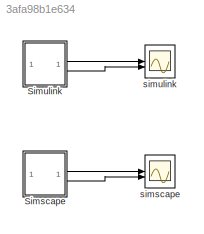
MODEL slx_3afa98b1e634
KIND model
CONFIG AbsTol = auto
CONFIG EnableMultiTasking = off
CONFIG FixedStep = auto
CONFIG MaxStep = auto
CONFIG MinStep = auto
CONFIG RelTol = 1e-3
CONFIG SampleTimeConstraint = Unconstrained
CONFIG SolverName = VariableStepAuto
CONFIG StartTime = 0.0
CONFIG StopTime = 0.01
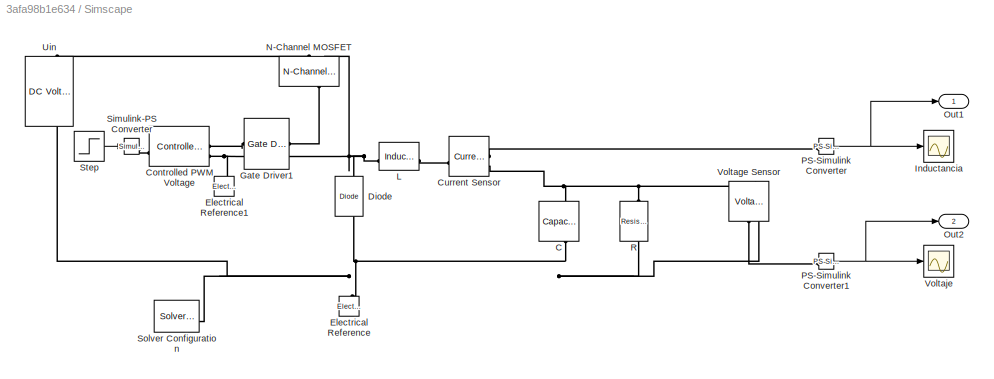
BLOCK [SubSystem] Simscape
BLOCK [Reference] Simscape/C  REF=fl_lib/Electrical/Electrical Elements/Capacitor
  NameLocation = left
  SourceBlock = fl_lib/Electrical/Electrical Elements/Capacitor
  SourceType = Capacitor
BLOCK [Reference] Simscape/Controlled PWM Voltage  REF=ee_lib/Integrated Circuits/Controlled PWM
Voltage
  SourceBlock = ee_lib/Integrated Circuits/Controlled PWM\nVoltage
  SourceType = Controlled PWM\nVoltage
BLOCK [Reference] Simscape/Current Sensor  REF=fl_lib/Electrical/Electrical Sensors/Current Sensor
  SourceBlock = fl_lib/Electrical/Electrical Sensors/Current Sensor
  SourceType = Current Sensor
BLOCK [Reference] Simscape/Diode  REF=fl_lib/Electrical/Electrical Elements/Diode
  NameLocation = right
  SourceBlock = fl_lib/Electrical/Electrical Elements/Diode
  SourceType = Diode
BLOCK [Reference] Simscape/Electrical Reference  REF=fl_lib/Electrical/Electrical Elements/Electrical Reference
  NameLocation = right
  SourceBlock = fl_lib/Electrical/Electrical Elements/Electrical Reference
  SourceType = Electrical Reference
BLOCK [Reference] Simscape/Electrical Reference1  REF=fl_lib/Electrical/Electrical Elements/Electrical Reference
  NameLocation = right
  SourceBlock = fl_lib/Electrical/Electrical Elements/Electrical Reference
  SourceType = Electrical Reference
BLOCK [Reference] Simscape/Gate Driver1  REF=ee_lib/Semiconductors &
Converters/Gate Driver
  SourceBlock = ee_lib/Semiconductors &\nConverters/Gate Driver
  SourceType = Gate Driver
BLOCK [Scope] Simscape/Inductancia
  Floating = off
  NumInputPorts = 1
  ScopeSpecificationString = Simulink.scopes.TimeScopeBlockCfg('CurrentConfiguration', extmgr.ConfigurationSet(extmgr.Configuration('Core','General UI',true),extmgr.Configuration('Core','Source UI',true),extmgr.Configuration('Sources','WiredSimulink',true,'DataLoggingVariableName','ScopeData4'),extmgr.Configuration('Visuals','Time Domain',true,'SerializedDisplays',{struct('MinYLimReal','-0.16533','MaxYLimReal','1.48797','YLab...<+1536ch>
BLOCK [Reference] Simscape/L  REF=fl_lib/Electrical/Electrical Elements/Inductor
  SourceBlock = fl_lib/Electrical/Electrical Elements/Inductor
  SourceType = Inductor
BLOCK [Reference] Simscape/N-Channel MOSFET  REF=ee_lib/Semiconductors &
Converters/N-Channel MOSFET
  NameLocation = right
  SourceBlock = ee_lib/Semiconductors &\nConverters/N-Channel MOSFET
  SourceType = N-Channel MOSFET
BLOCK [Outport] Simscape/Out1
BLOCK [Outport] Simscape/Out2
  Port = 2
BLOCK [Reference] Simscape/PS-Simulink Converter  REF=nesl_utility/PS-Simulink
Converter
  SourceBlock = nesl_utility/PS-Simulink\nConverter
  SourceType = PS-Simulink\nConverter
BLOCK [Reference] Simscape/PS-Simulink Converter1  REF=nesl_utility/PS-Simulink
Converter
  SourceBlock = nesl_utility/PS-Simulink\nConverter
  SourceType = PS-Simulink\nConverter
BLOCK [Reference] Simscape/R  REF=fl_lib/Electrical/Electrical Elements/Resistor
  NameLocation = left
  SourceBlock = fl_lib/Electrical/Electrical Elements/Resistor
  SourceType = Resistor
BLOCK [Reference] Simscape/Simulink-PS Converter  REF=nesl_utility/Simulink-PS
Converter
  SourceBlock = nesl_utility/Simulink-PS\nConverter
  SourceType = Simulink-PS\nConverter
BLOCK [Reference] Simscape/Solver Configuration  REF=nesl_utility/Solver
Configuration
  SourceBlock = nesl_utility/Solver\nConfiguration
  SourceType = Solver\nConfiguration
BLOCK [Step] Simscape/Step
  After = 0.4
  SampleTime = 0
  Time = 0
BLOCK [Reference] Simscape/Uin  REF=fl_lib/Electrical/Electrical Sources/DC Voltage Source
  NameLocation = right
  SourceBlock = fl_lib/Electrical/Electrical Sources/DC Voltage Source
  SourceType = DC Voltage Source
BLOCK [Reference] Simscape/Voltage Sensor  REF=fl_lib/Electrical/Electrical Sensors/Voltage Sensor
  NameLocation = left
  SourceBlock = fl_lib/Electrical/Electrical Sensors/Voltage Sensor
  SourceType = Voltage Sensor
BLOCK [Scope] Simscape/Voltaje
  Floating = off
  NumInputPorts = 1
  ScopeSpecificationString = Simulink.scopes.TimeScopeBlockCfg('CurrentConfiguration', extmgr.ConfigurationSet(extmgr.Configuration('Core','General UI',true),extmgr.Configuration('Core','Source UI',true),extmgr.Configuration('Sources','WiredSimulink',true,'DataLoggingVariableName','ScopeData3'),extmgr.Configuration('Visuals','Time Domain',true,'SerializedDisplays',{struct('MinYLimReal','-1.59361','MaxYLimReal','14.34249','YLa...<+1498ch>
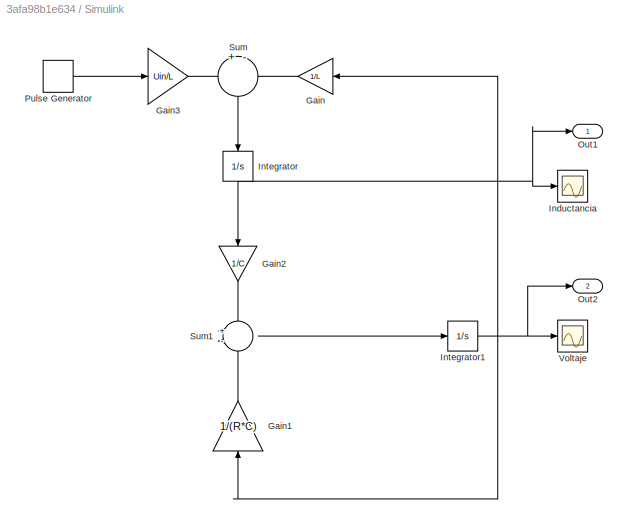
BLOCK [SubSystem] Simulink
BLOCK [Gain] Simulink/Gain
  Gain = 1/L
  NameLocation = top
BLOCK [Gain] Simulink/Gain1
  Gain = 1/(R*C)
  NameLocation = right
BLOCK [Gain] Simulink/Gain2
  Gain = 1/C
  NameLocation = left
BLOCK [Gain] Simulink/Gain3
  Gain = Uin/L
BLOCK [Scope] Simulink/Inductancia
  Floating = off
  NumInputPorts = 1
  ScopeSpecificationString = Simulink.scopes.TimeScopeBlockCfg('CurrentConfiguration', extmgr.ConfigurationSet(extmgr.Configuration('Core','General UI',true),extmgr.Configuration('Core','Source UI',true),extmgr.Configuration('Sources','WiredSimulink',true),extmgr.Configuration('Visuals','Time Domain',true,'SerializedDisplays',{struct('MinYLimReal','-0.16533','MaxYLimReal','1.48797','YLabelReal','','MinYLimMag','0.00000','MaxY...<+1486ch>
BLOCK [Integrator] Simulink/Integrator
  NameLocation = left
BLOCK [Integrator] Simulink/Integrator1
BLOCK [Outport] Simulink/Out1
BLOCK [Outport] Simulink/Out2
  Port = 2
BLOCK [DiscretePulseGenerator] Simulink/Pulse Generator
  Amplitude = 0.955
  Period = 1e-5
  PulseType = Time based
  PulseWidth = 40
BLOCK [Sum] Simulink/Sum
  Inputs = +-
  NameLocation = left
BLOCK [Sum] Simulink/Sum1
  Inputs = +-
BLOCK [Scope] Simulink/Voltaje
  Floating = off
  NumInputPorts = 1
  ScopeSpecificationString = Simulink.scopes.TimeScopeBlockCfg('CurrentConfiguration', extmgr.ConfigurationSet(extmgr.Configuration('Core','General UI',true),extmgr.Configuration('Core','Source UI',true),extmgr.Configuration('Sources','WiredSimulink',true,'DataLoggingVariableName','ScopeData1'),extmgr.Configuration('Visuals','Time Domain',true,'SerializedDisplays',{struct('MinYLimReal','-1.59397','MaxYLimReal','14.34571','YLa...<+1533ch>
BLOCK [Scope] simscape
  Floating = off
  NumInputPorts = 2
  ScopeSpecificationString = Simulink.scopes.TimeScopeBlockCfg('CurrentConfiguration', extmgr.ConfigurationSet(extmgr.Configuration('Core','General UI',true),extmgr.Configuration('Core','Source UI',true),extmgr.Configuration('Sources','WiredSimulink',true,'DataLoggingVariableName','ScopeData5'),extmgr.Configuration('Visuals','Time Domain',true,'SerializedDisplays',{struct('MinYLimReal','-1.59361','MaxYLimReal','14.34249','YLa...<+1632ch>
BLOCK [Scope] simulink
  Floating = off
  NumInputPorts = 2
  ScopeSpecificationString = Simulink.scopes.TimeScopeBlockCfg('CurrentConfiguration', extmgr.ConfigurationSet(extmgr.Configuration('Core','General UI',true),extmgr.Configuration('Core','Source UI',true),extmgr.Configuration('Sources','WiredSimulink',true,'DataLoggingVariableName','ScopeData2'),extmgr.Configuration('Visuals','Time Domain',true,'SerializedDisplays',{struct('MinYLimReal','-1.59429','MaxYLimReal','14.34864','YLa...<+1633ch>
NET Simscape/PS-Simulink Converter1:1 -> Simscape/Out2:1, Simscape/Voltaje:1
NET Simscape/PS-Simulink Converter:1 -> Simscape/Inductancia:1, Simscape/Out1:1
LINE Simscape/Step:1 -> Simscape/Simulink-PS Converter:1
LINE Simscape:1 -> simscape:1
LINE Simscape:2 -> simscape:2
LINE Simulink/Gain1:1 -> Simulink/Sum1:2
LINE Simulink/Gain2:1 -> Simulink/Sum1:1
LINE Simulink/Gain3:1 -> Simulink/Sum:1
LINE Simulink/Gain:1 -> Simulink/Sum:2
NET Simulink/Integrator1:1 -> Simulink/Gain1:1, Simulink/Gain:1, Simulink/Out2:1, Simulink/Voltaje:1
NET Simulink/Integrator:1 -> Simulink/Gain2:1, Simulink/Inductancia:1, Simulink/Out1:1
LINE Simulink/Pulse Generator:1 -> Simulink/Gain3:1
LINE Simulink/Sum1:1 -> Simulink/Integrator1:1
LINE Simulink/Sum:1 -> Simulink/Integrator:1
LINE Simulink:1 -> simulink:1
LINE Simulink:2 -> simulink:2
PNET net1: Simscape/C:LConn1 -- Simscape/Current Sensor:RConn2 -- Simscape/R:LConn1 -- Simscape/Voltage Sensor:LConn1
PNET net2: Simscape/C:RConn1 -- Simscape/Diode:LConn1 -- Simscape/Electrical Reference:LConn1 -- Simscape/R:RConn1 -- Simscape/Solver Configuration:RConn1 -- Simscape/Uin:RConn1 -- Simscape/Voltage Sensor:RConn2
PLINE Simscape/Controlled PWM Voltage:LConn1 -- Simscape/Simulink-PS Converter:RConn1
PLINE Simscape/Controlled PWM Voltage:RConn1 -- Simscape/Gate Driver1:LConn1
PNET net3: Simscape/Controlled PWM Voltage:RConn2 -- Simscape/Electrical Reference1:LConn1 -- Simscape/Gate Driver1:LConn2
PLINE Simscape/Current Sensor:LConn1 -- Simscape/L:RConn1
PLINE Simscape/Current Sensor:RConn1 -- Simscape/PS-Simulink Converter:LConn1
PNET net4: Simscape/Diode:RConn1 -- Simscape/Gate Driver1:RConn2 -- Simscape/L:LConn1 -- Simscape/N-Channel MOSFET:RConn2
PLINE Simscape/Gate Driver1:RConn1 -- Simscape/N-Channel MOSFET:LConn1
PLINE Simscape/N-Channel MOSFET:RConn1 -- Simscape/Uin:LConn1
PLINE Simscape/PS-Simulink Converter1:LConn1 -- Simscape/Voltage Sensor:RConn1
note: NET lines group one-source signal fan-out (src -> all destinations, sorted); 1:1 wires keep LINE; PNET lines group multi-terminal physical nets as a canonical sorted terminal list (undirected conserving connections); 2-terminal nets keep the pairwise PLINE form
